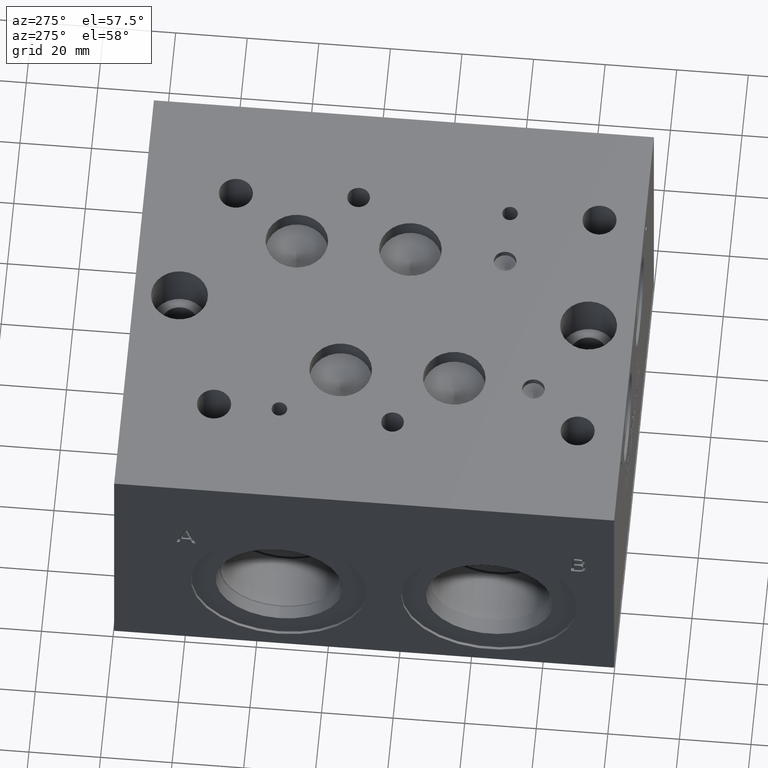
[diagram: clean part render]
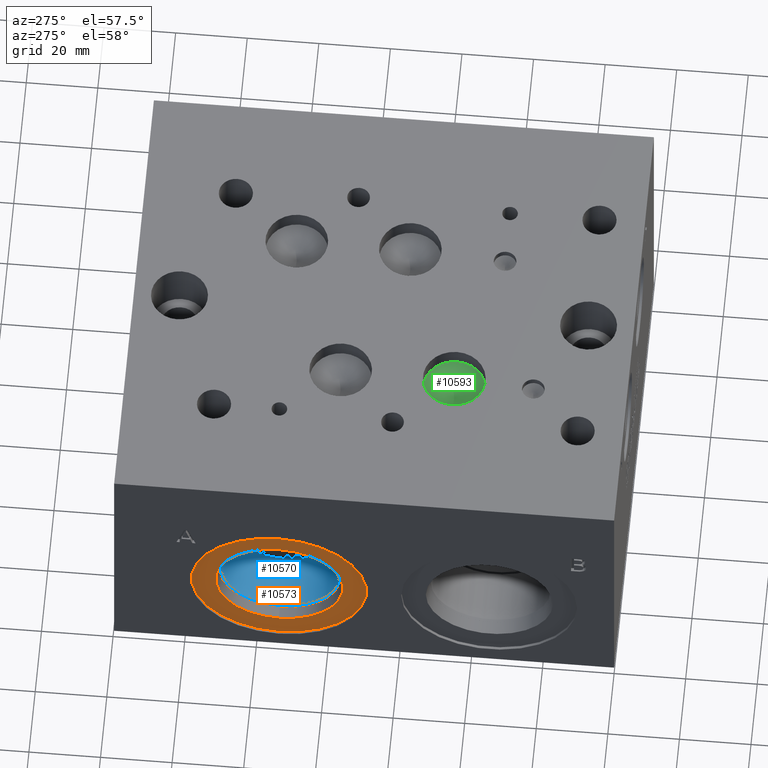
[diagram: same view with three faces highlighted in distinct colors, each labeled with its STEP entity id]
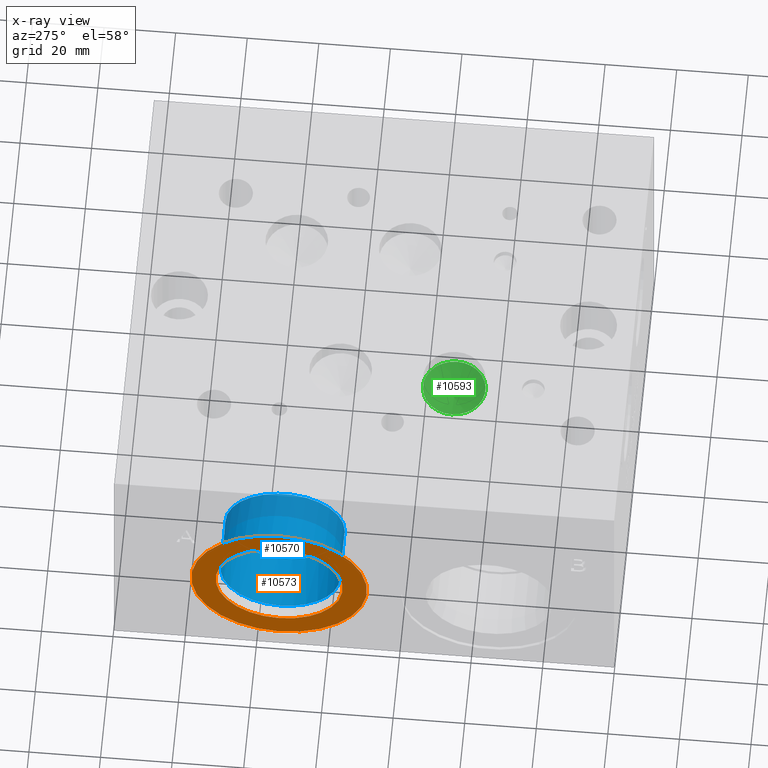
[diagram: x-ray of the same camera — body ghosted, the three highlighted faces saturated]
A machine part, auxiliary view with three faces highlighted in distinct colors.
The next image is the same camera in x-ray (body ghosted, the three faces saturated) — at least one of them is partly hidden behind the body in this view.
Their STEP definitions:

[orange] entity #10573 — the highlighted planar face has unit normal (1, 0, 0).
#224=CIRCLE('',#11105,24.5618);
#225=CIRCLE('',#11106,24.5618);
#226=CIRCLE('',#11108,17.7546);
#227=CIRCLE('',#11109,17.7546);
#373=FACE_BOUND('',#1800,.T.);
#693=PLANE('',#11107);
#1198=FACE_OUTER_BOUND('',#1799,.T.);
#1799=EDGE_LOOP('',(#9237,#9238));
#1800=EDGE_LOOP('',(#9239,#9240));
#5020=VERTEX_POINT('',#17998);
#5021=VERTEX_POINT('',#18000);
#5022=VERTEX_POINT('',#18004);
#5023=VERTEX_POINT('',#18005);
#6459=EDGE_CURVE('',#5020,#5021,#224,.T.);
#6460=EDGE_CURVE('',#5021,#5020,#225,.T.);
#6461=EDGE_CURVE('',#5022,#5023,#226,.T.);
#6462=EDGE_CURVE('',#5023,#5022,#227,.T.);
#9237=ORIENTED_EDGE('',*,*,#6460,.F.);
#9238=ORIENTED_EDGE('',*,*,#6459,.F.);
#9239=ORIENTED_EDGE('',*,*,#6461,.T.);
#9240=ORIENTED_EDGE('',*,*,#6462,.T.);
#10573=ADVANCED_FACE('',(#1198,#373),#693,.F.);
#11105=AXIS2_PLACEMENT_3D('',#18001,#13120,#13121);
#11106=AXIS2_PLACEMENT_3D('',#18002,#13122,#13123);
#11107=AXIS2_PLACEMENT_3D('',#18003,#13124,#13125);
#11108=AXIS2_PLACEMENT_3D('',#18006,#13126,#13127);
#11109=AXIS2_PLACEMENT_3D('',#18007,#13128,#13129);
#13120=DIRECTION('center_axis',(1.,0.,0.));
#13121=DIRECTION('ref_axis',(0.,0.,-1.));
#13122=DIRECTION('center_axis',(1.,0.,0.));
#13123=DIRECTION('ref_axis',(0.,0.,-1.));
#13124=DIRECTION('center_axis',(1.,0.,0.));
#13125=DIRECTION('ref_axis',(0.,0.,-1.));
#13126=DIRECTION('center_axis',(1.,0.,0.));
#13127=DIRECTION('ref_axis',(0.,0.,-1.));
#13128=DIRECTION('center_axis',(1.,0.,0.));
#13129=DIRECTION('ref_axis',(0.,0.,-1.));
#17998=CARTESIAN_POINT('',(0.7874,93.6752,4.8006));
#18000=CARTESIAN_POINT('',(0.7874,93.6752,53.9242));
#18001=CARTESIAN_POINT('Origin',(0.7874,93.6752,29.3624));
#18002=CARTESIAN_POINT('Origin',(0.7874,93.6752,29.3624));
#18003=CARTESIAN_POINT('Origin',(0.7874,93.6752,47.117));
#18004=CARTESIAN_POINT('',(0.7874,93.6752,47.117));
#18005=CARTESIAN_POINT('',(0.787399999999998,93.6752,11.6078));
#18006=CARTESIAN_POINT('Origin',(0.7874,93.6752,29.3624));
#18007=CARTESIAN_POINT('Origin',(0.7874,93.6752,29.3624));

[blue] entity #10570 — the highlighted cylindrical surface (bore or boss wall) has radius 16.67 mm, axis along (-1, 0, 0).
#42=CYLINDRICAL_SURFACE('',#11100,16.67);
#219=CIRCLE('',#11097,16.67);
#220=CIRCLE('',#11098,16.67);
#222=CIRCLE('',#11101,16.67);
#223=CIRCLE('',#11102,16.67);
#1195=FACE_OUTER_BOUND('',#1796,.T.);
#1796=EDGE_LOOP('',(#9220,#9221,#9222,#9223,#9224,#9225));
#2818=LINE('',#17993,#3800);
#3800=VECTOR('',#13111,16.67);
#5015=VERTEX_POINT('',#17983);
#5016=VERTEX_POINT('',#17984);
#5018=VERTEX_POINT('',#17990);
#5019=VERTEX_POINT('',#17991);
#6451=EDGE_CURVE('',#5015,#5016,#219,.T.);
#6452=EDGE_CURVE('',#5016,#5015,#220,.T.);
#6454=EDGE_CURVE('',#5018,#5019,#222,.T.);
#6455=EDGE_CURVE('',#5018,#5016,#2818,.T.);
#6456=EDGE_CURVE('',#5019,#5018,#223,.T.);
#9220=ORIENTED_EDGE('',*,*,#6454,.F.);
#9221=ORIENTED_EDGE('',*,*,#6455,.T.);
#9222=ORIENTED_EDGE('',*,*,#6451,.F.);
#9223=ORIENTED_EDGE('',*,*,#6452,.F.);
#9224=ORIENTED_EDGE('',*,*,#6455,.F.);
#9225=ORIENTED_EDGE('',*,*,#6456,.F.);
#10570=ADVANCED_FACE('',(#1195),#42,.F.);
#11097=AXIS2_PLACEMENT_3D('',#17985,#13101,#13102);
#11098=AXIS2_PLACEMENT_3D('',#17986,#13103,#13104);
#11100=AXIS2_PLACEMENT_3D('',#17989,#13107,#13108);
#11101=AXIS2_PLACEMENT_3D('',#17992,#13109,#13110);
#11102=AXIS2_PLACEMENT_3D('',#17994,#13112,#13113);
#13101=DIRECTION('center_axis',(-1.,0.,0.));
#13102=DIRECTION('ref_axis',(0.,1.,0.));
#13103=DIRECTION('center_axis',(-1.,0.,0.));
#13104=DIRECTION('ref_axis',(0.,1.,0.));
#13107=DIRECTION('center_axis',(-1.,0.,0.));
#13108=DIRECTION('ref_axis',(0.,1.,0.));
#13109=DIRECTION('center_axis',(1.,0.,0.));
#13110=DIRECTION('ref_axis',(0.,1.,0.));
#13111=DIRECTION('',(1.,0.,0.));
#13112=DIRECTION('center_axis',(1.,0.,0.));
#13113=DIRECTION('ref_axis',(0.,1.,0.));
#17983=CARTESIAN_POINT('',(19.8374,110.3452,29.3624));
#17984=CARTESIAN_POINT('',(19.8374,77.0052,29.3624));
#17985=CARTESIAN_POINT('Origin',(19.8374,93.6752,29.3624));
#17986=CARTESIAN_POINT('Origin',(19.8374,93.6752,29.3624));
#17989=CARTESIAN_POINT('Origin',(9.9187,93.6752,29.3624));
#17990=CARTESIAN_POINT('',(4.27229999999999,77.0052,29.3624));
#17991=CARTESIAN_POINT('',(4.2723,93.6752,12.6924));
#17992=CARTESIAN_POINT('Origin',(4.27229999999999,93.6752,29.3624));
#17993=CARTESIAN_POINT('',(9.9187,77.0052,29.3624));
#17994=CARTESIAN_POINT('Origin',(4.27229999999999,93.6752,29.3624));

[green] entity #10593 — the highlighted conical surface has half-angle 60 deg.
#103=CONICAL_SURFACE('',#11165,4.3688,1.0471975511966);
#264=CIRCLE('',#11166,8.7376);
#265=CIRCLE('',#11167,8.7376);
#1218=FACE_OUTER_BOUND('',#1822,.T.);
#1822=EDGE_LOOP('',(#9335,#9336,#9337,#9338));
#2838=LINE('',#18126,#3820);
#3820=VECTOR('',#13261,4.3688);
#5065=VERTEX_POINT('',#18122);
#5066=VERTEX_POINT('',#18123);
#5067=VERTEX_POINT('',#18125);
#6516=EDGE_CURVE('',#5065,#5066,#264,.T.);
#6517=EDGE_CURVE('',#5066,#5067,#2838,.T.);
#6518=EDGE_CURVE('',#5066,#5065,#265,.T.);
#9335=ORIENTED_EDGE('',*,*,#6516,.T.);
#9336=ORIENTED_EDGE('',*,*,#6517,.T.);
#9337=ORIENTED_EDGE('',*,*,#6517,.F.);
#9338=ORIENTED_EDGE('',*,*,#6518,.T.);
#10593=ADVANCED_FACE('',(#1218),#103,.F.);
#11165=AXIS2_PLACEMENT_3D('',#18121,#13257,#13258);
#11166=AXIS2_PLACEMENT_3D('',#18124,#13259,#13260);
#11167=AXIS2_PLACEMENT_3D('',#18127,#13262,#13263);
#13257=DIRECTION('center_axis',(0.,0.,1.));
#13258=DIRECTION('ref_axis',(1.,0.,0.));
#13259=DIRECTION('center_axis',(0.,0.,1.));
#13260=DIRECTION('ref_axis',(1.,0.,0.));
#13261=DIRECTION('',(0.866025403784439,1.06057523872491E-16,-0.5));
#13262=DIRECTION('center_axis',(0.,0.,1.));
#13263=DIRECTION('ref_axis',(1.,0.,0.));
#18121=CARTESIAN_POINT('Origin',(42.8752,48.4124,68.6330121439644));
#18122=CARTESIAN_POINT('',(51.6128,48.4124,71.15534));
#18123=CARTESIAN_POINT('',(34.1376,48.4124,71.15534));
#18124=CARTESIAN_POINT('Origin',(42.8752,48.4124,71.15534));
#18125=CARTESIAN_POINT('',(42.8752,48.4124,66.1106842879287));
#18126=CARTESIAN_POINT('',(38.5064,48.4124,68.6330121439644));
#18127=CARTESIAN_POINT('Origin',(42.8752,48.4124,71.15534));